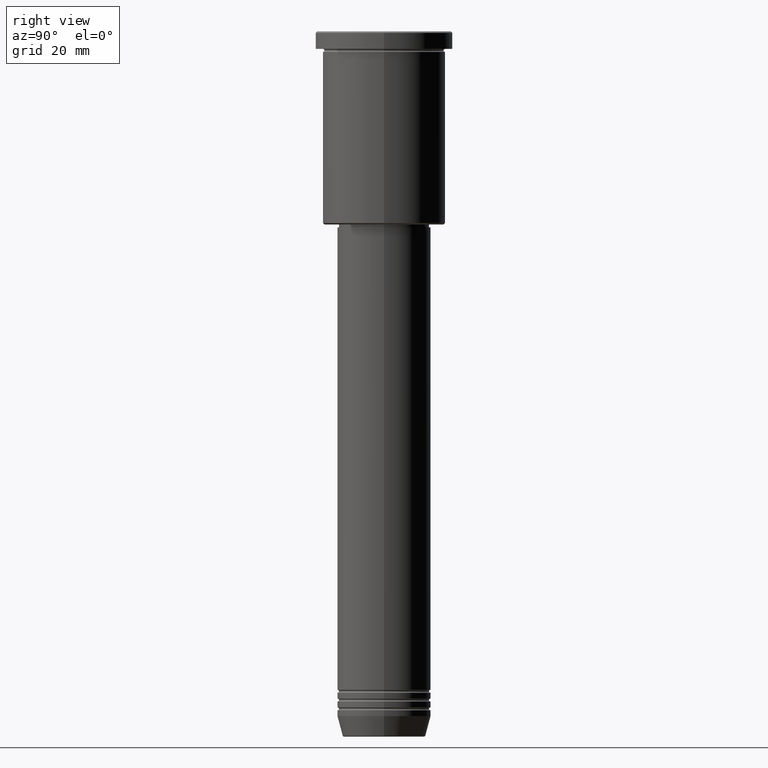
[diagram: clean part render]
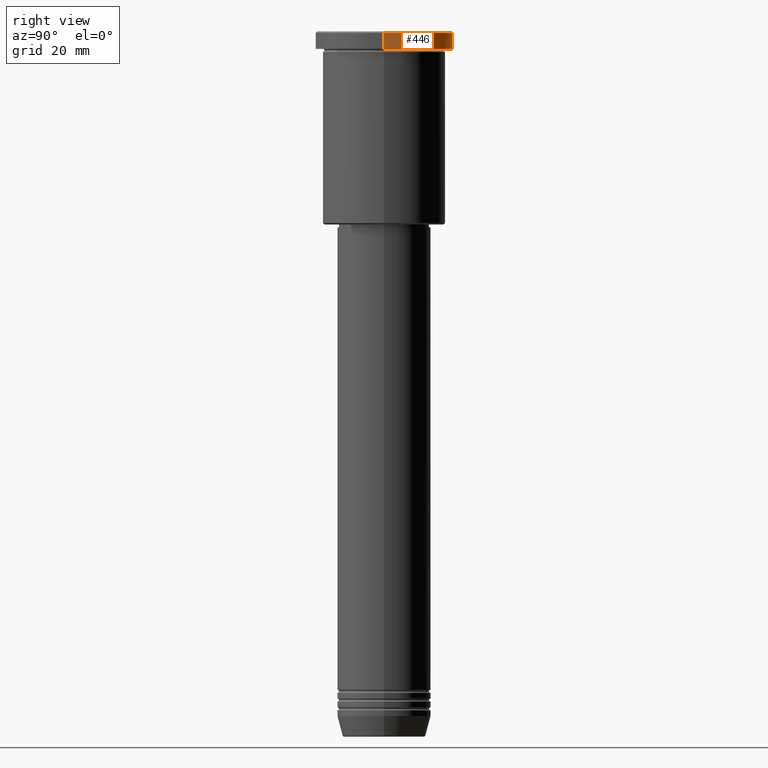
[diagram: same view with one face highlighted and labeled with its STEP entity id]
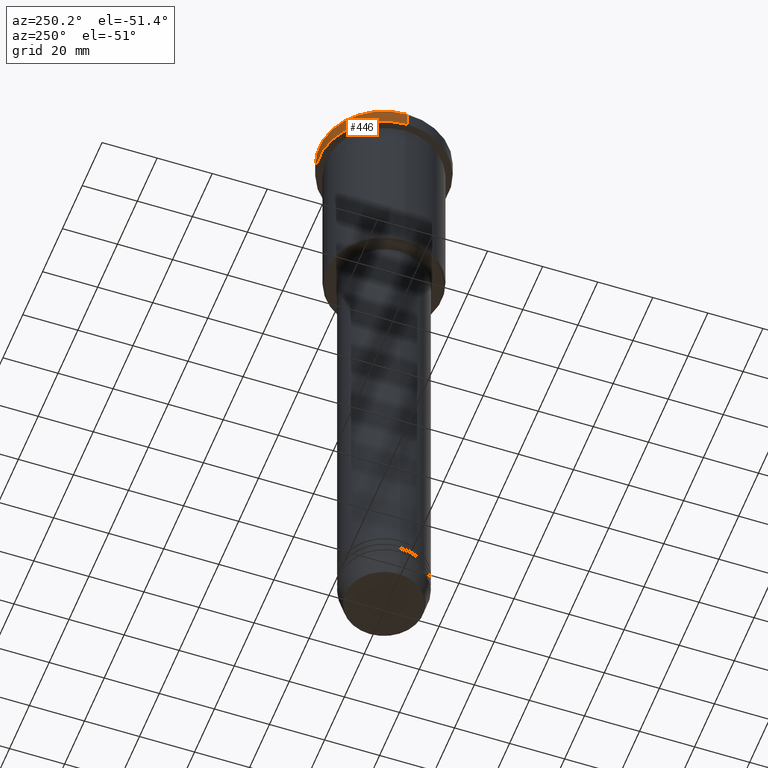
[diagram: same view with one face highlighted and labeled with its STEP entity id]
A machine part, right view. The second image highlights one B-rep face of the part: STEP entity #446.
A second angle (auxiliary view) of the same face is appended — the face is thin or edge-on in the first view.
In plain terms, the highlighted cylindrical surface (partial cylindrical patch) has radius 23.5 mm, axis along (-0, -0, 1).
Its self-contained STEP definition (entity closure, byte-faithful):
#16 = CARTESIAN_POINT ( 'NONE',  ( 0.000000000000000000, 0.000000000000000000, -5.999999999999994671 ) ) ;
#30 = AXIS2_PLACEMENT_3D ( 'NONE', #493, #947, #325 ) ;
#66 = EDGE_CURVE ( 'NONE', #909, #449, #789, .T. ) ;
#93 = LINE ( 'NONE', #717, #1016 ) ;
#128 = ORIENTED_EDGE ( 'NONE', *, *, #218, .F. ) ;
#157 = ORIENTED_EDGE ( 'NONE', *, *, #66, .T. ) ;
#167 = VERTEX_POINT ( 'NONE', #406 ) ;
#192 = DIRECTION ( 'NONE',  ( 1.000000000000000000, 0.000000000000000000, 0.000000000000000000 ) ) ;
#218 = EDGE_CURVE ( 'NONE', #1137, #167, #93, .T. ) ;
#227 = CARTESIAN_POINT ( 'NONE',  ( -23.50000000000000000, 2.877919977996280320E-15, 0.000000000000000000 ) ) ;
#234 = ORIENTED_EDGE ( 'NONE', *, *, #1012, .T. ) ;
#240 = DIRECTION ( 'NONE',  ( -0.000000000000000000, -0.000000000000000000, 1.000000000000000000 ) ) ;
#261 = CIRCLE ( 'NONE', #30, 23.50000000000000000 ) ;
#325 = DIRECTION ( 'NONE',  ( 1.000000000000000000, 0.000000000000000000, 0.000000000000000000 ) ) ;
#406 = CARTESIAN_POINT ( 'NONE',  ( 23.50000000000000000, 0.000000000000000000, -0.5000000000000281997 ) ) ;
#446 = ADVANCED_FACE ( 'NONE', ( #508 ), #795, .T. ) ;
#449 = VERTEX_POINT ( 'NONE', #875 ) ;
#493 = CARTESIAN_POINT ( 'NONE',  ( 0.000000000000000000, 0.000000000000000000, -0.5000000000000281997 ) ) ;
#508 = FACE_OUTER_BOUND ( 'NONE', #899, .T. ) ;
#539 = CIRCLE ( 'NONE', #1023, 23.50000000000000000 ) ;
#643 = EDGE_CURVE ( 'NONE', #1137, #909, #539, .T. ) ;
#661 = CARTESIAN_POINT ( 'NONE',  ( -23.50000000000000000, 2.877919977996280320E-15, -5.999999999999994671 ) ) ;
#686 = CARTESIAN_POINT ( 'NONE',  ( 0.000000000000000000, 0.000000000000000000, 0.000000000000000000 ) ) ;
#717 = CARTESIAN_POINT ( 'NONE',  ( 23.50000000000000000, 0.000000000000000000, 0.000000000000000000 ) ) ;
#789 = LINE ( 'NONE', #227, #799 ) ;
#795 = CYLINDRICAL_SURFACE ( 'NONE', #1059, 23.50000000000000000 ) ;
#799 = VECTOR ( 'NONE', #977, 1000.000000000000000 ) ;
#807 = DIRECTION ( 'NONE',  ( -0.000000000000000000, -0.000000000000000000, 1.000000000000000000 ) ) ;
#875 = CARTESIAN_POINT ( 'NONE',  ( -23.50000000000000000, 2.877919977996280320E-15, -0.5000000000000281997 ) ) ;
#899 = EDGE_LOOP ( 'NONE', ( #926, #157, #234, #128 ) ) ;
#909 = VERTEX_POINT ( 'NONE', #661 ) ;
#926 = ORIENTED_EDGE ( 'NONE', *, *, #643, .T. ) ;
#947 = DIRECTION ( 'NONE',  ( 0.000000000000000000, 0.000000000000000000, -1.000000000000000000 ) ) ;
#977 = DIRECTION ( 'NONE',  ( -0.000000000000000000, -0.000000000000000000, 1.000000000000000000 ) ) ;
#1012 = EDGE_CURVE ( 'NONE', #449, #167, #261, .T. ) ;
#1013 = CARTESIAN_POINT ( 'NONE',  ( 23.50000000000000000, 0.000000000000000000, -5.999999999999994671 ) ) ;
#1016 = VECTOR ( 'NONE', #1097, 1000.000000000000000 ) ;
#1023 = AXIS2_PLACEMENT_3D ( 'NONE', #16, #807, #192 ) ;
#1059 = AXIS2_PLACEMENT_3D ( 'NONE', #686, #240, #1153 ) ;
#1097 = DIRECTION ( 'NONE',  ( -0.000000000000000000, -0.000000000000000000, 1.000000000000000000 ) ) ;
#1137 = VERTEX_POINT ( 'NONE', #1013 ) ;
#1153 = DIRECTION ( 'NONE',  ( 1.000000000000000000, 0.000000000000000000, 0.000000000000000000 ) ) ;